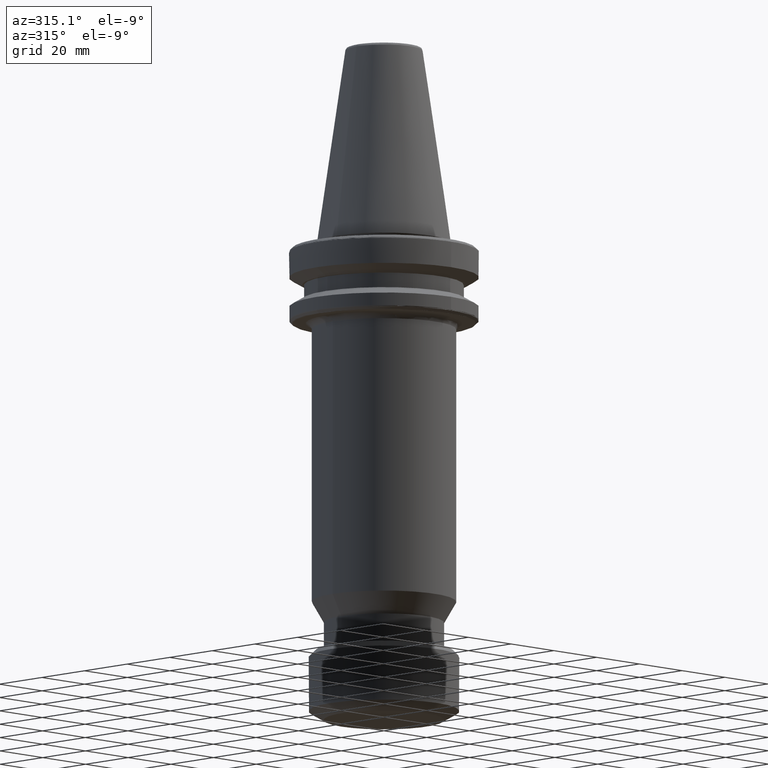
[diagram: clean part render]
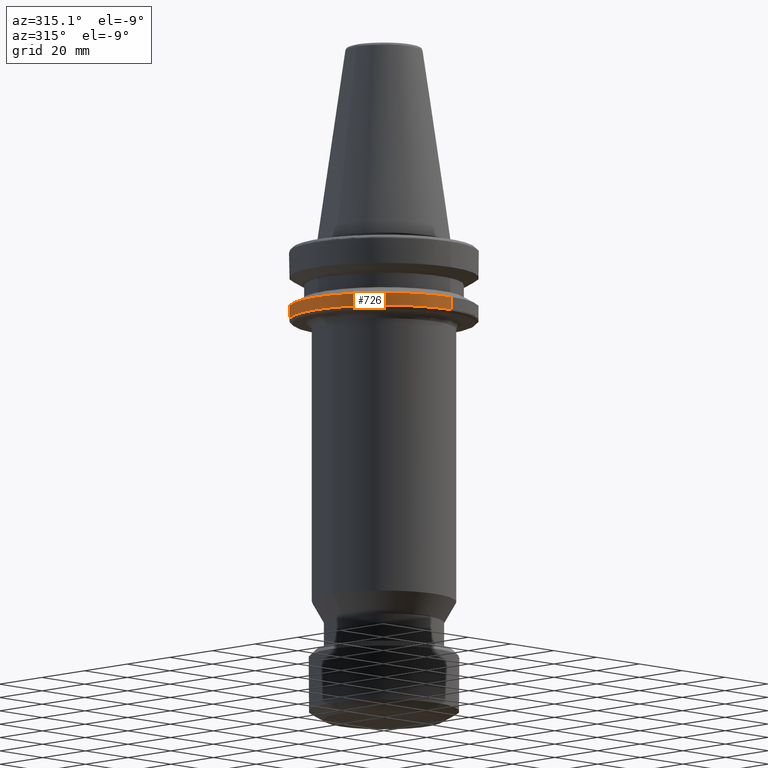
[diagram: same view with one face highlighted and labeled with its STEP entity id]
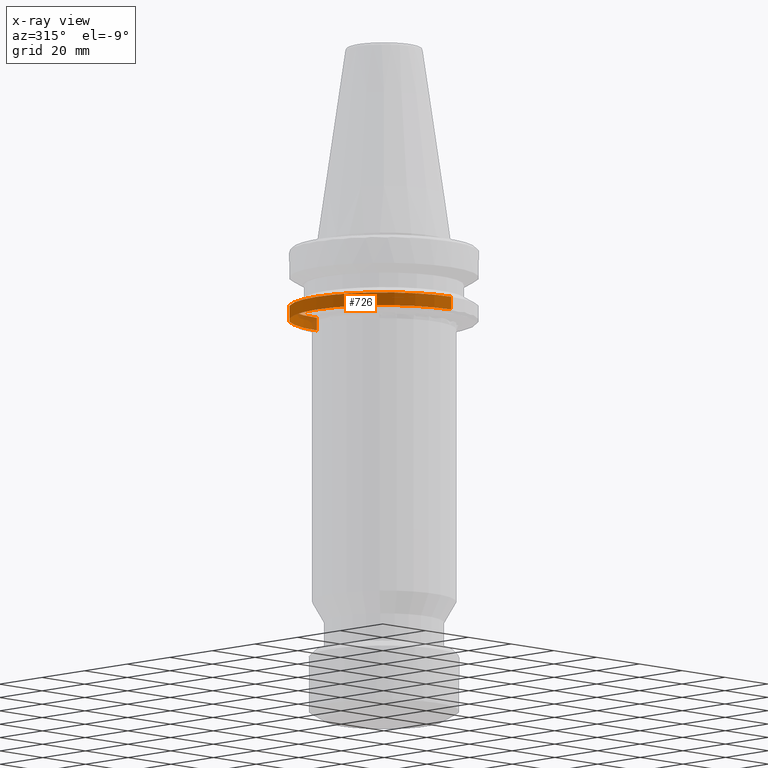
[diagram: x-ray of the same camera — body ghosted, the highlighted face saturated]
A machine part, auxiliary view. The second image highlights one B-rep face of the part: STEP entity #726.
The next image is the same camera in x-ray: the body ghosted, the highlighted face saturated — about 5% of this face is hidden behind the body in this view.
In plain terms, the highlighted cylindrical surface (partial cylindrical patch) has radius 31.5 mm, axis along (0, -0, 1).
Its self-contained STEP definition (entity closure, byte-faithful):
#13 = LINE ( 'NONE', #2609, #456 ) ;
#35 = CARTESIAN_POINT ( 'NONE',  ( -31.50000000001359300, -4.845568498675163300E-009, -25.83431457497197000 ) ) ;
#59 = FACE_OUTER_BOUND ( 'NONE', #82, .T. ) ;
#61 = CARTESIAN_POINT ( 'NONE',  ( 0.0000000000000000000, 0.0000000000000000000, -25.83431457497091400 ) ) ;
#82 = EDGE_LOOP ( 'NONE', ( #2852, #2908, #2921, #3001, #3031, #453 ) ) ;
#183 = VERTEX_POINT ( 'NONE', #3315 ) ;
#264 = CARTESIAN_POINT ( 'NONE',  ( 0.0000000000000000000, 0.0000000000000000000, -21.58138557534147800 ) ) ;
#402 = EDGE_CURVE ( 'NONE', #1828, #2046, #2204, .T. ) ;
#413 = VERTEX_POINT ( 'NONE', #1671 ) ;
#453 = ORIENTED_EDGE ( 'NONE', *, *, #1754, .T. ) ;
#456 = VECTOR ( 'NONE', #2614, 1000.000000000000000 ) ;
#483 = DIRECTION ( 'NONE',  ( 0.0000000000000000000, -5.507058653894625200E-017, 1.000000000000000000 ) ) ;
#517 = CARTESIAN_POINT ( 'NONE',  ( 3.857637417314162700E-015, 31.50000000000000000, -25.83431457497092200 ) ) ;
#553 = LINE ( 'NONE', #2846, #1138 ) ;
#726 = ADVANCED_FACE ( 'NONE', ( #59 ), #940, .T. ) ;
#940 = CYLINDRICAL_SURFACE ( 'NONE', #3105, 31.50000000000000000 ) ;
#996 = CARTESIAN_POINT ( 'NONE',  ( 3.857637417340806500E-015, 31.50000000021756800, -21.58138557534147800 ) ) ;
#1061 = EDGE_CURVE ( 'NONE', #2046, #2922, #1854, .T. ) ;
#1138 = VECTOR ( 'NONE', #483, 1000.000000000000000 ) ;
#1343 = CIRCLE ( 'NONE', #3266, 31.50000000021756800 ) ;
#1423 = AXIS2_PLACEMENT_3D ( 'NONE', #2672, #2668, #2666 ) ;
#1519 = EDGE_CURVE ( 'NONE', #2922, #3169, #13, .T. ) ;
#1620 = DIRECTION ( 'NONE',  ( 0.0000000000000000000, 1.000000000000000000, 2.202823461556582700E-016 ) ) ;
#1631 = EDGE_CURVE ( 'NONE', #1828, #413, #553, .T. ) ;
#1661 = DIRECTION ( 'NONE',  ( 0.0000000000000000000, -1.000000000000000000, 0.0000000000000000000 ) ) ;
#1671 = CARTESIAN_POINT ( 'NONE',  ( 0.0000000000000000000, -31.50000000021756800, -21.58138557534147800 ) ) ;
#1754 = EDGE_CURVE ( 'NONE', #183, #3169, #1343, .T. ) ;
#1815 = DIRECTION ( 'NONE',  ( -0.0000000000000000000, 1.652117596172950100E-016, -1.000000000000000000 ) ) ;
#1828 = VERTEX_POINT ( 'NONE', #2402 ) ;
#1854 = CIRCLE ( 'NONE', #1423, 31.50000000001812600 ) ;
#1953 = CARTESIAN_POINT ( 'NONE',  ( 0.0000000000000000000, 0.0000000000000000000, -25.83431457500000100 ) ) ;
#2046 = VERTEX_POINT ( 'NONE', #35 ) ;
#2093 = DIRECTION ( 'NONE',  ( 0.0000000000000000000, -5.507058653894625200E-017, 1.000000000000000000 ) ) ;
#2102 = DIRECTION ( 'NONE',  ( -1.000000000000000000, 0.0000000000000000000, 0.0000000000000000000 ) ) ;
#2204 = CIRCLE ( 'NONE', #2652, 31.50000000001812600 ) ;
#2314 = CARTESIAN_POINT ( 'NONE',  ( 0.0000000000000000000, 0.0000000000000000000, -21.58138557534147800 ) ) ;
#2319 = DIRECTION ( 'NONE',  ( -0.0000000000000000000, -0.0000000000000000000, -1.000000000000000000 ) ) ;
#2327 = DIRECTION ( 'NONE',  ( -1.000000000000000000, 0.0000000000000000000, 0.0000000000000000000 ) ) ;
#2402 = CARTESIAN_POINT ( 'NONE',  ( 0.0000000000000000000, -31.50000000000000000, -25.83431457497092200 ) ) ;
#2609 = CARTESIAN_POINT ( 'NONE',  ( 3.857637417314162700E-015, 31.50000000000000000, -25.83431457500000100 ) ) ;
#2614 = DIRECTION ( 'NONE',  ( 0.0000000000000000000, -5.507058653894625200E-017, 1.000000000000000000 ) ) ;
#2650 = DIRECTION ( 'NONE',  ( -0.0000000000000000000, -0.0000000000000000000, -1.000000000000000000 ) ) ;
#2652 = AXIS2_PLACEMENT_3D ( 'NONE', #61, #1815, #1620 ) ;
#2666 = DIRECTION ( 'NONE',  ( 0.0000000000000000000, 1.000000000000000000, -2.202823461556582700E-016 ) ) ;
#2668 = DIRECTION ( 'NONE',  ( -0.0000000000000000000, -1.652117596172950100E-016, -1.000000000000000000 ) ) ;
#2672 = CARTESIAN_POINT ( 'NONE',  ( 0.0000000000000000000, 0.0000000000000000000, -25.83431457497091400 ) ) ;
#2846 = CARTESIAN_POINT ( 'NONE',  ( 0.0000000000000000000, -31.50000000000000000, -25.83431457500000100 ) ) ;
#2852 = ORIENTED_EDGE ( 'NONE', *, *, #1519, .F. ) ;
#2908 = ORIENTED_EDGE ( 'NONE', *, *, #1061, .F. ) ;
#2921 = ORIENTED_EDGE ( 'NONE', *, *, #402, .F. ) ;
#2922 = VERTEX_POINT ( 'NONE', #517 ) ;
#3001 = ORIENTED_EDGE ( 'NONE', *, *, #1631, .T. ) ;
#3031 = ORIENTED_EDGE ( 'NONE', *, *, #3127, .T. ) ;
#3105 = AXIS2_PLACEMENT_3D ( 'NONE', #1953, #2093, #1661 ) ;
#3127 = EDGE_CURVE ( 'NONE', #413, #183, #3183, .T. ) ;
#3169 = VERTEX_POINT ( 'NONE', #996 ) ;
#3183 = CIRCLE ( 'NONE', #3236, 31.50000000021756800 ) ;
#3236 = AXIS2_PLACEMENT_3D ( 'NONE', #264, #2650, #2102 ) ;
#3266 = AXIS2_PLACEMENT_3D ( 'NONE', #2314, #2319, #2327 ) ;
#3315 = CARTESIAN_POINT ( 'NONE',  ( -31.50000000021756800, 0.0000000000000000000, -21.58138557534147800 ) ) ;